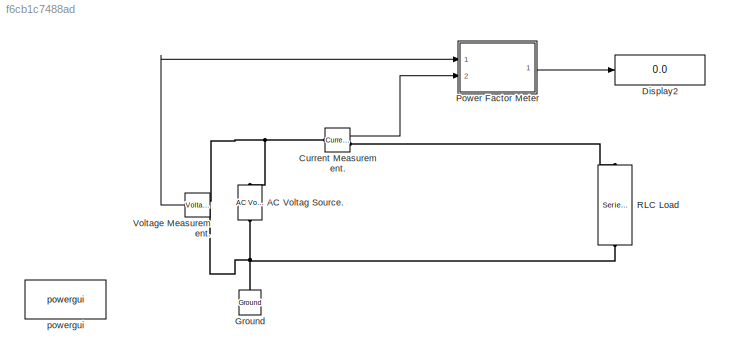
MODEL slx_f6cb1c7488ad
KIND model
BLOCK [Reference]  RLC Load  REF=powerlib/Elements/Series RLC Load
  ActivePower = 10e3
  AttributesFormatString = \n
  CapacitivePower = 3000
  InductivePower = 5000
  InitialCurrent = 0
  InitialVoltage = 0
  LConnTagsString = a
  LoadType = constant Z
  Measurements = None
  NominalFrequency = 60
  NominalVoltage = 1000
  Ports = [0, 0, 0, 0, 0, 1, 1]
  RConnTagsString = __new0
  SetiL0 = off
  Setx0 = off
  SourceBlock = powerlib/Elements/Series RLC Load
  SourceType = Series RLC Load
BLOCK [Reference] AC Voltag Source.  REF=powerlib/Electrical
Sources/AC Voltage Source
  Amplitude = 100
  BusType = swing
  Frequency = 60
  Measurements = None
  Phase = 0
  Ports = [0, 0, 0, 0, 0, 1, 1]
  Pref = 10e3
  Qmax = +inf
  Qmin = -inf
  Qref = 0
  SampleTime = 0
  SourceBlock = powerlib/Electrical\nSources/AC Voltage Source
  SourceType = AC Voltage Source
BLOCK [Reference] Current Measurement.  REF=powerlib/Measurements/Current Measurement
  OutputType = Complex
  PSBequivalent = 0
  PhasorSimulation = off
  Ports = [0, 1, 0, 0, 0, 1, 1]
  SourceBlock = powerlib/Measurements/Current Measurement
  SourceType = Current Measurement
  UserDataPersistent = on
BLOCK [Display] Display2
  Decimation = 1
  Ports = [1]
BLOCK [Reference] Ground  REF=powerlib/Elements/Ground
  LConnTagsString = a
  Ports = [0, 0, 0, 0, 0, 1]
  SourceBlock = powerlib/Elements/Ground
  SourceType = Ground
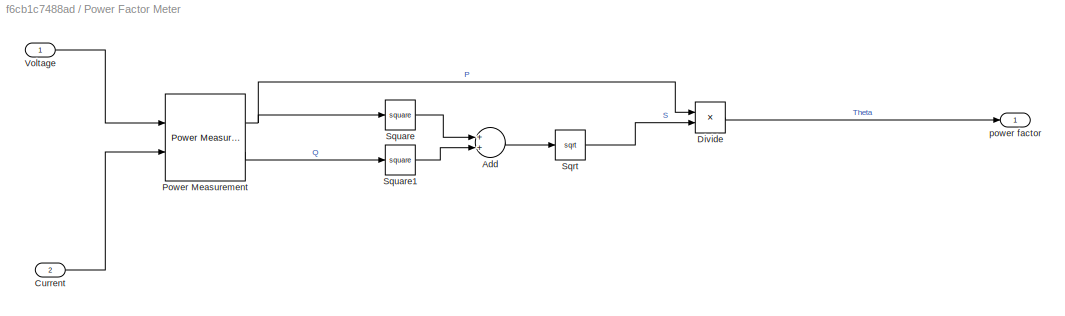
BLOCK [SubSystem] Power Factor Meter
  FunctionWithSeparateData = off
  MaskHideContents = off
  MinAlgLoopOccurrences = off
  Opaque = off
  Ports = [2, 1]
  PropExecContextOutsideSubsystem = off
  RTWSystemCode = Auto
  RequestExecContextInheritance = off
BLOCK [Sum] Power Factor Meter/Add
  InputSameDT = off
  OutDataTypeStr = Inherit: Inherit via internal rule
  Ports = [2, 1]
  SaturateOnIntegerOverflow = off
BLOCK [Inport] Power Factor Meter/Current
  IconDisplay = Port number
  Port = 2
BLOCK [Product] Power Factor Meter/Divide
  InputSameDT = off
  Inputs = */
  OutDataTypeStr = Inherit: Inherit via internal rule
  Ports = [2, 1]
  RndMeth = Floor
  SaturateOnIntegerOverflow = off
BLOCK [Reference] Power Factor Meter/Power Measurement  REF=eePowerMeasurement/Power
Measurement
  F = F
  K = [1]
  OverrideUsingVariant = Continuous
  Ports = [2, 2]
  SourceBlock = eePowerMeasurement/Power\nMeasurement
  SourceType = Power Measurement
  Ts = 0
BLOCK [Sqrt] Power Factor Meter/Sqrt
BLOCK [Math] Power Factor Meter/Square
  Operator = square
  Ports = [1, 1]
BLOCK [Math] Power Factor Meter/Square1
  Operator = square
  Ports = [1, 1]
BLOCK [Inport] Power Factor Meter/Voltage
  IconDisplay = Port number
BLOCK [Outport] Power Factor Meter/power factor
  IconDisplay = Port number
BLOCK [Reference] Voltage Measurement.  REF=powerlib/Measurements/Voltage Measurement
  OutputType = Complex
  PSBequivalent = 0
  PhasorSimulation = off
  Ports = [0, 1, 0, 0, 0, 2]
  SourceBlock = powerlib/Measurements/Voltage Measurement
  SourceType = Voltage Measurement
  UserDataPersistent = on
BLOCK [Reference] powergui  REF=powerlib/powergui
  AutomaticDiscreteSolvers = off
  ContinueOnMaxIteration = off
  CurrentSourceSwitches = off
  DisableRonSwitches = off
  DisableSnubberDevices = off
  DisableVfSwitches = off
  DisplayEquations = off
  DisplayStyle = 1
  EnableUseOfTLC = off
  ErrMax = 1e-4
  ExternalGateDelay = off
  Frange = [0:2:500]
  FreqAxis = off
  FunctionMessages = off
  HookPort = off
  Interpol = off
  Iterations = 50
  MaxFrequency = 1000
  NonlinearTolerance = 1e-4
  Pbase = 100e6
  Ports = []
  Priority = 1
  ResistiveCurrentMeasurement = off
  RestoreLinks = warning
  RmsSteady = 1
  SPID = on
  SampleTime = 50e-6
  ShowGrid = off
  SolverType = Tustin/Backward Euler (TBE)
  SourceBlock = powerlib/powergui
  SourceType = PSB option menu block
  StartTime = 0.0
  SwTol = 0
  Ts = 100
  UnitsV = kV
  UnitsW = MW
  Xlog = on
  Ylog = off
  ZoomFFT = off
  buscounter = 0
  cycles = 1
  display = off
  echomessages = off
  frequency = 60
  frequencyindice = 60
  frequencyindicesteady = 1
  fundamental = 60
  methode = off
  nMaxIteration = 100
  save = off
  structure = 0
  variable = ZData
  x0status = blocks
LINE Current Measurement.:1 -> Power Factor Meter:2
LINE Power Factor Meter/Add:1 -> Power Factor Meter/Sqrt:1
LINE Power Factor Meter/Current:1 -> Power Factor Meter/Power Measurement:2
LINE Power Factor Meter/Divide:1 -> Power Factor Meter/power factor:1
NET Power Factor Meter/Power Measurement:1 -> Power Factor Meter/Divide:1, Power Factor Meter/Square:1
LINE Power Factor Meter/Power Measurement:2 -> Power Factor Meter/Square1:1
LINE Power Factor Meter/Sqrt:1 -> Power Factor Meter/Divide:2
LINE Power Factor Meter/Square1:1 -> Power Factor Meter/Add:2
LINE Power Factor Meter/Square:1 -> Power Factor Meter/Add:1
LINE Power Factor Meter/Voltage:1 -> Power Factor Meter/Power Measurement:1
LINE Power Factor Meter:1 -> Display2:1
LINE Voltage Measurement.:1 -> Power Factor Meter:1
PLINE  RLC Load:LConn1 -- Current Measurement.:RConn1
PNET net1:  RLC Load:RConn1 -- AC Voltag Source.:LConn1 -- Ground:LConn1 -- Voltage Measurement.:LConn2
PNET net2: AC Voltag Source.:RConn1 -- Current Measurement.:LConn1 -- Voltage Measurement.:LConn1
note: NET lines group one-source signal fan-out (src -> all destinations, sorted); 1:1 wires keep LINE; PNET lines group multi-terminal physical nets as a canonical sorted terminal list (undirected conserving connections); 2-terminal nets keep the pairwise PLINE form
